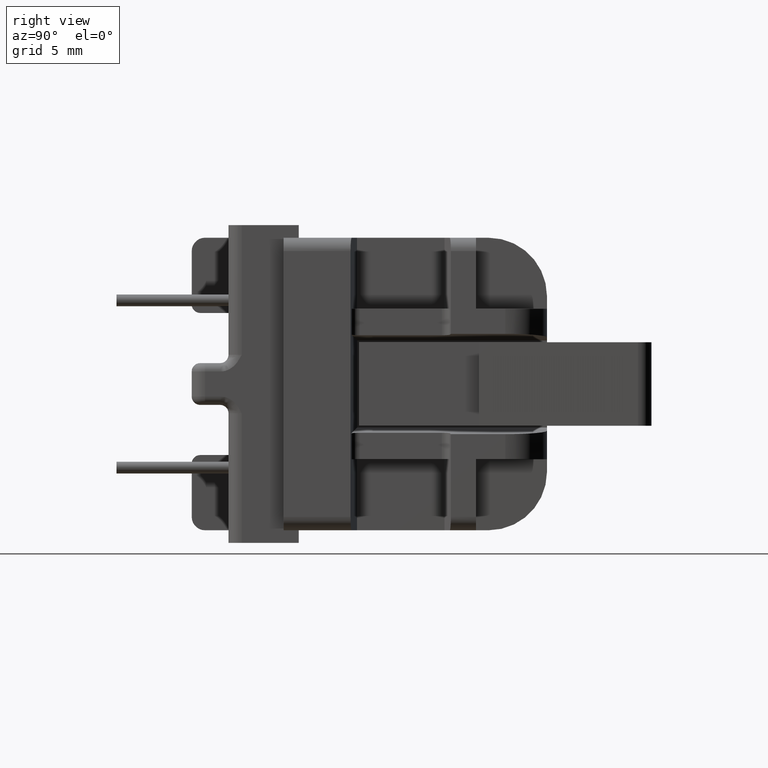
[diagram: clean part render]
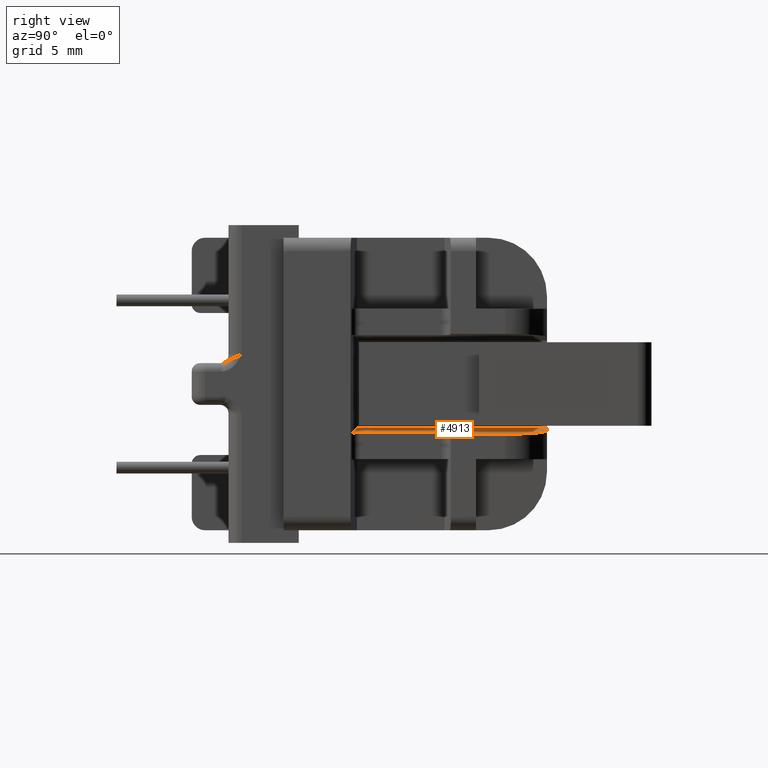
[diagram: same view with one face highlighted and labeled with its STEP entity id]
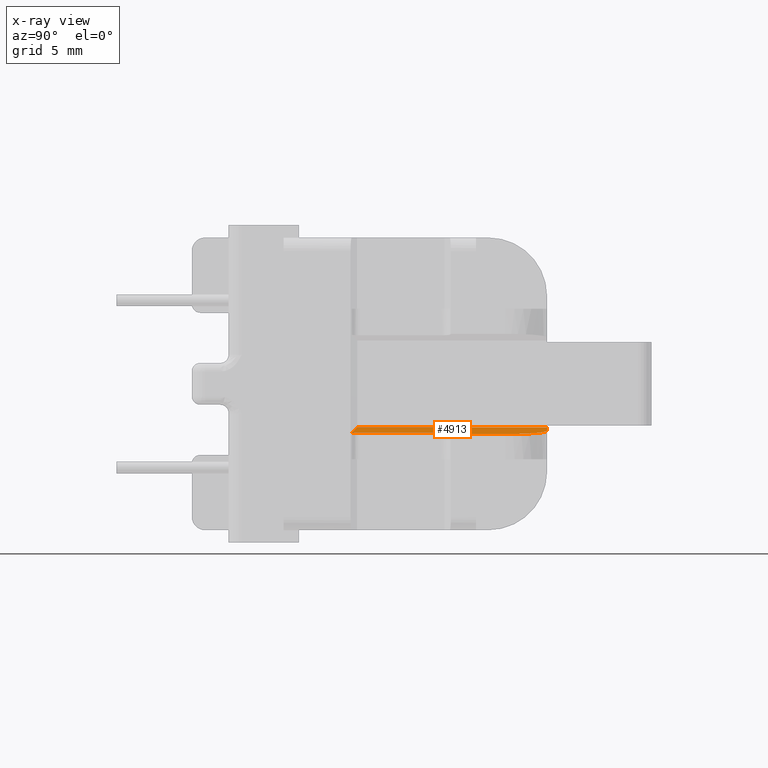
[diagram: x-ray of the same camera — body ghosted, the highlighted face saturated]
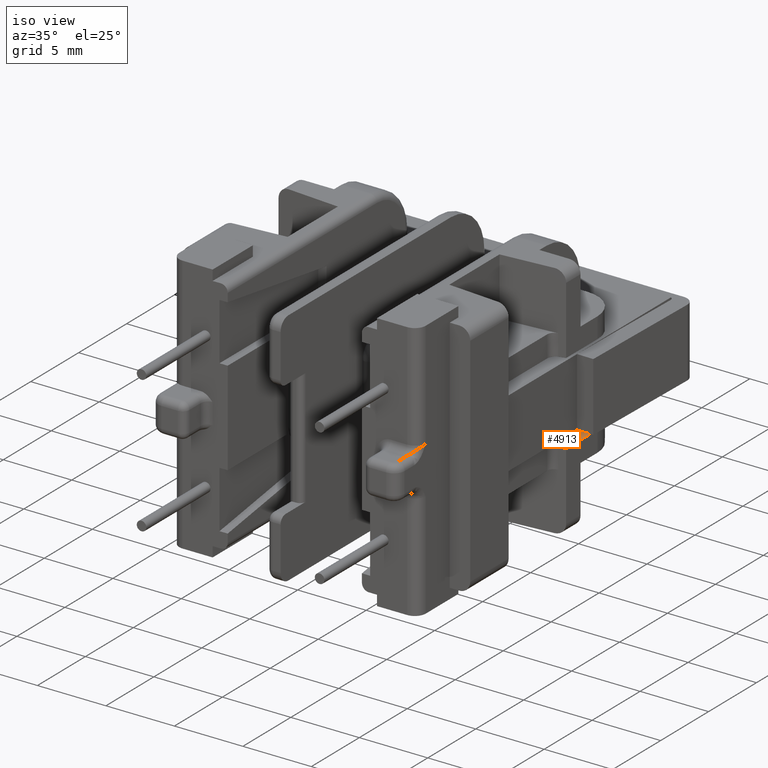
[diagram: same view with one face highlighted and labeled with its STEP entity id]
A machine part, right view. The second image highlights one B-rep face of the part: STEP entity #4913.
The next image is the same camera in x-ray: the body ghosted, the highlighted face saturated — about 0% of this face is hidden behind the body in this view.
A second angle (iso view) of the same face is appended — the face is thin or edge-on in the first view.
In plain terms, the highlighted planar face has unit normal (0.083, 0, 0.9965).
Its self-contained STEP definition (entity closure, byte-faithful):
#46 = LINE ( 'NONE', #934, #20604 ) ;
#824 = VERTEX_POINT ( 'NONE', #12496 ) ;
#934 = CARTESIAN_POINT ( 'NONE',  ( 9.500000000000014211, -11.30000000000000071, -2.916666666666670071 ) ) ;
#1094 = LINE ( 'NONE', #19215, #14913 ) ;
#1193 = VERTEX_POINT ( 'NONE', #22881 ) ;
#1292 =( BOUNDED_CURVE ( )  B_SPLINE_CURVE ( 3, ( #3746, #5529, #10864, #18344 ),
 .UNSPECIFIED., .F., .F. ) 
 B_SPLINE_CURVE_WITH_KNOTS ( ( 4, 4 ),
 ( 4.795530212273131809, 6.283185307179586232 ),
 .UNSPECIFIED. ) 
 CURVE ( )  GEOMETRIC_REPRESENTATION_ITEM ( )  RATIONAL_B_SPLINE_CURVE ( ( 1.000000000000000000, 0.8239215244884317002, 0.8239215244884317002, 1.000000000000000000 ) ) 
 REPRESENTATION_ITEM ( '' )  );
#1332 = EDGE_CURVE ( 'NONE', #4180, #8222, #16402, .T. ) ;
#2013 = EDGE_CURVE ( 'NONE', #1193, #4180, #7717, .T. ) ;
#2417 =( BOUNDED_CURVE ( )  B_SPLINE_CURVE ( 3, ( #12428, #10693, #5220, #21578 ),
 .UNSPECIFIED., .F., .T. ) 
 B_SPLINE_CURVE_WITH_KNOTS ( ( 4, 4 ),
 ( 3.141592653589791340, 4.629247748496247539 ),
 .UNSPECIFIED. ) 
 CURVE ( )  GEOMETRIC_REPRESENTATION_ITEM ( )  RATIONAL_B_SPLINE_CURVE ( ( 1.000000000000000000, 0.8239215244884312561, 0.8239215244884312561, 1.000000000000000000 ) ) 
 REPRESENTATION_ITEM ( '' )  );
#2540 = CARTESIAN_POINT ( 'NONE',  ( 10.50000000000000355, 6.250000000000000888, -3.000000000000000000 ) ) ;
#2605 = FACE_OUTER_BOUND ( 'NONE', #13931, .T. ) ;
#2971 = DIRECTION ( 'NONE',  ( 0.9965457582448794538, 0.0000000000000000000, -0.08304547985374066688 ) ) ;
#3041 = DIRECTION ( 'NONE',  ( -0.9931270663228417561, -0.08276058886023467120, 0.08276058886023753003 ) ) ;
#3746 = CARTESIAN_POINT ( 'NONE',  ( 9.958477260073138382, -2.954873105006091905, -2.954873105006097678 ) ) ;
#4180 = VERTEX_POINT ( 'NONE', #21231 ) ;
#4845 = EDGE_CURVE ( 'NONE', #824, #8222, #21526, .T. ) ;
#4913 = ADVANCED_FACE ( 'NONE', ( #2605 ), #13749, .T. ) ;
#5220 = CARTESIAN_POINT ( 'NONE',  ( 9.685485812441426035, 2.932123817703455426, -2.932123817703454538 ) ) ;
#5529 = CARTESIAN_POINT ( 'NONE',  ( 9.685485812441429587, -2.932123817703449209, -2.932123817703454538 ) ) ;
#5548 = DIRECTION ( 'NONE',  ( -0.0000000000000000000, 1.000000000000000000, -0.0000000000000000000 ) ) ;
#5645 = EDGE_CURVE ( 'NONE', #6811, #20832, #46, .T. ) ;
#6811 = VERTEX_POINT ( 'NONE', #8329 ) ;
#7248 = ORIENTED_EDGE ( 'NONE', *, *, #15974, .F. ) ;
#7329 = CARTESIAN_POINT ( 'NONE',  ( 3.966206896551720984, 8.750000000000001776, -2.455517241379308047 ) ) ;
#7717 =( BOUNDED_CURVE ( )  B_SPLINE_CURVE ( 3, ( #2540, #7932, #9926, #18307 ),
 .UNSPECIFIED., .F., .T. ) 
 B_SPLINE_CURVE_WITH_KNOTS ( ( 4, 4 ),
 ( 3.141592653589793116, 4.712388980384689674 ),
 .UNSPECIFIED. ) 
 CURVE ( )  GEOMETRIC_REPRESENTATION_ITEM ( )  RATIONAL_B_SPLINE_CURVE ( ( 1.000000000000000000, 0.8047378541243649375, 0.8047378541243649375, 1.000000000000000000 ) ) 
 REPRESENTATION_ITEM ( '' )  );
#7932 = CARTESIAN_POINT ( 'NONE',  ( 10.50000000000000000, 7.714466094067262247, -3.000000000000000888 ) ) ;
#7938 = ORIENTED_EDGE ( 'NONE', *, *, #10871, .T. ) ;
#8222 = VERTEX_POINT ( 'NONE', #12055 ) ;
#8329 = CARTESIAN_POINT ( 'NONE',  ( 9.500000000000005329, 2.456600225883657007, -2.916666666666669183 ) ) ;
#8381 = VERTEX_POINT ( 'NONE', #20171 ) ;
#9052 = ORIENTED_EDGE ( 'NONE', *, *, #19921, .T. ) ;
#9284 = DIRECTION ( 'NONE',  ( 0.9931270663228415341, -0.08276058886023665573, -0.08276058886023748840 ) ) ;
#9288 = VERTEX_POINT ( 'NONE', #17052 ) ;
#9444 = VERTEX_POINT ( 'NONE', #20915 ) ;
#9462 = ORIENTED_EDGE ( 'NONE', *, *, #4845, .F. ) ;
#9790 = DIRECTION ( 'NONE',  ( 5.947623346206194344E-16, -1.000000000000000000, -4.956352788505204067E-17 ) ) ;
#9866 = VECTOR ( 'NONE', #11005, 1000.000000000000114 ) ;
#9905 = VECTOR ( 'NONE', #9284, 1000.000000000000114 ) ;
#9926 = CARTESIAN_POINT ( 'NONE',  ( 9.464466094067262247, 8.750000000000000000, -2.913705507838939113 ) ) ;
#10373 = DIRECTION ( 'NONE',  ( -1.234495964368722127E-16, 1.000000000000000000, -0.0000000000000000000 ) ) ;
#10487 = LINE ( 'NONE', #20143, #9905 ) ;
#10693 = CARTESIAN_POINT ( 'NONE',  ( 9.500000000000003553, 2.730537920538545382, -2.916666666666669183 ) ) ;
#10864 = CARTESIAN_POINT ( 'NONE',  ( 9.500000000000010658, -2.730537920538539609, -2.916666666666669183 ) ) ;
#10871 = EDGE_CURVE ( 'NONE', #8381, #1193, #21218, .T. ) ;
#10924 = ORIENTED_EDGE ( 'NONE', *, *, #5645, .F. ) ;
#10945 = CARTESIAN_POINT ( 'NONE',  ( 5.700000000000001954, -11.30000000000000071, -2.600000000000000089 ) ) ;
#11005 = DIRECTION ( 'NONE',  ( -0.9965457582448794538, 3.087020217343752863E-16, 0.08304547985374066688 ) ) ;
#11626 = VECTOR ( 'NONE', #10373, 1000.000000000000000 ) ;
#12055 = CARTESIAN_POINT ( 'NONE',  ( 5.700000000000001954, 8.750000000000000000, -2.600000000000000089 ) ) ;
#12428 = CARTESIAN_POINT ( 'NONE',  ( 9.500000000000005329, 2.456600225883657007, -2.916666666666669183 ) ) ;
#12496 = CARTESIAN_POINT ( 'NONE',  ( 5.700000000000001954, 2.600000000000001421, -2.600000000000000089 ) ) ;
#13397 = CARTESIAN_POINT ( 'NONE',  ( 9.500000000000008882, -2.456600225883651678, -2.916666666666669627 ) ) ;
#13749 = PLANE ( 'NONE',  #21626 ) ;
#13931 = EDGE_LOOP ( 'NONE', ( #7938, #17136, #17955, #9462, #18220, #19786, #18523, #10924, #9052, #7248 ) ) ;
#14438 = VECTOR ( 'NONE', #5548, 1000.000000000000000 ) ;
#14913 = VECTOR ( 'NONE', #3041, 999.9999999999998863 ) ;
#15073 = EDGE_CURVE ( 'NONE', #9288, #21162, #10487, .T. ) ;
#15675 = CARTESIAN_POINT ( 'NONE',  ( 10.50000000000000355, 11.05207895405218466, -3.000000000000000000 ) ) ;
#15974 = EDGE_CURVE ( 'NONE', #8381, #9444, #1094, .T. ) ;
#16402 = LINE ( 'NONE', #7329, #9866 ) ;
#16664 = EDGE_CURVE ( 'NONE', #21162, #20832, #1292, .T. ) ;
#16693 = DIRECTION ( 'NONE',  ( -0.0000000000000000000, 1.000000000000000000, -0.0000000000000000000 ) ) ;
#17052 = CARTESIAN_POINT ( 'NONE',  ( 5.699999999999994849, -2.599999999999999201, -2.600000000000005418 ) ) ;
#17136 = ORIENTED_EDGE ( 'NONE', *, *, #2013, .T. ) ;
#17303 = DIRECTION ( 'NONE',  ( 0.08304547985374068075, 0.0000000000000000000, 0.9965457582448795648 ) ) ;
#17955 = ORIENTED_EDGE ( 'NONE', *, *, #1332, .T. ) ;
#18220 = ORIENTED_EDGE ( 'NONE', *, *, #22192, .F. ) ;
#18307 = CARTESIAN_POINT ( 'NONE',  ( 8.000000000000000000, 8.750000000000000000, -2.791666666666667407 ) ) ;
#18344 = CARTESIAN_POINT ( 'NONE',  ( 9.500000000000008882, -2.456600225883651678, -2.916666666666669627 ) ) ;
#18523 = ORIENTED_EDGE ( 'NONE', *, *, #16664, .T. ) ;
#18749 = CARTESIAN_POINT ( 'NONE',  ( 5.700000000000001954, -11.30000000000000071, -2.600000000000000089 ) ) ;
#19215 = CARTESIAN_POINT ( 'NONE',  ( 9.324657534246608037, 2.902054794520553038, -2.902054794520553482 ) ) ;
#19272 = VECTOR ( 'NONE', #16693, 1000.000000000000000 ) ;
#19786 = ORIENTED_EDGE ( 'NONE', *, *, #15073, .T. ) ;
#19921 = EDGE_CURVE ( 'NONE', #6811, #9444, #2417, .T. ) ;
#20143 = CARTESIAN_POINT ( 'NONE',  ( 5.239726027397257901, -2.561643835616436160, -2.561643835616437936 ) ) ;
#20171 = CARTESIAN_POINT ( 'NONE',  ( 10.50000000000000355, 3.000000000000000000, -3.000000000000003553 ) ) ;
#20215 = CARTESIAN_POINT ( 'NONE',  ( 9.958477260073138382, -2.954873105006091905, -2.954873105006097678 ) ) ;
#20604 = VECTOR ( 'NONE', #9790, 1000.000000000000000 ) ;
#20832 = VERTEX_POINT ( 'NONE', #13397 ) ;
#20915 = CARTESIAN_POINT ( 'NONE',  ( 9.958477260073134829, 2.954873105006095457, -2.954873105006097678 ) ) ;
#21162 = VERTEX_POINT ( 'NONE', #20215 ) ;
#21218 = LINE ( 'NONE', #15675, #11626 ) ;
#21231 = CARTESIAN_POINT ( 'NONE',  ( 8.000000000000000000, 8.750000000000000000, -2.791666666666667407 ) ) ;
#21526 = LINE ( 'NONE', #18749, #19272 ) ;
#21578 = CARTESIAN_POINT ( 'NONE',  ( 9.958477260073134829, 2.954873105006095457, -2.954873105006097678 ) ) ;
#21626 = AXIS2_PLACEMENT_3D ( 'NONE', #22699, #17303, #2971 ) ;
#22077 = LINE ( 'NONE', #10945, #14438 ) ;
#22192 = EDGE_CURVE ( 'NONE', #9288, #824, #22077, .T. ) ;
#22699 = CARTESIAN_POINT ( 'NONE',  ( 10.50000000000000355, -11.30000000000000071, -3.000000000000003553 ) ) ;
#22881 = CARTESIAN_POINT ( 'NONE',  ( 10.50000000000000355, 6.250000000000000888, -3.000000000000000000 ) ) ;